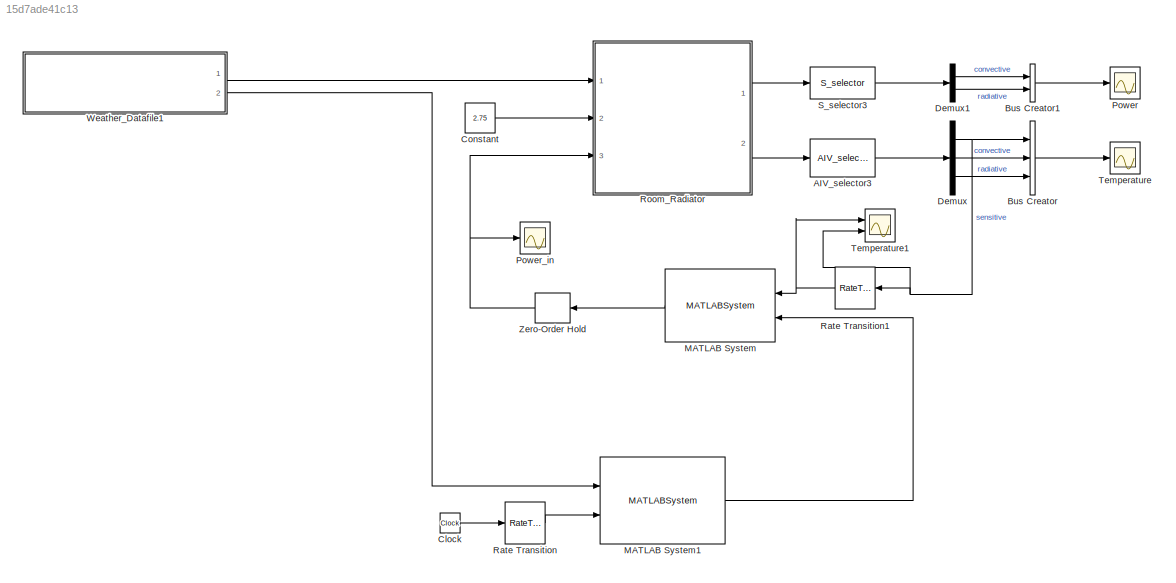
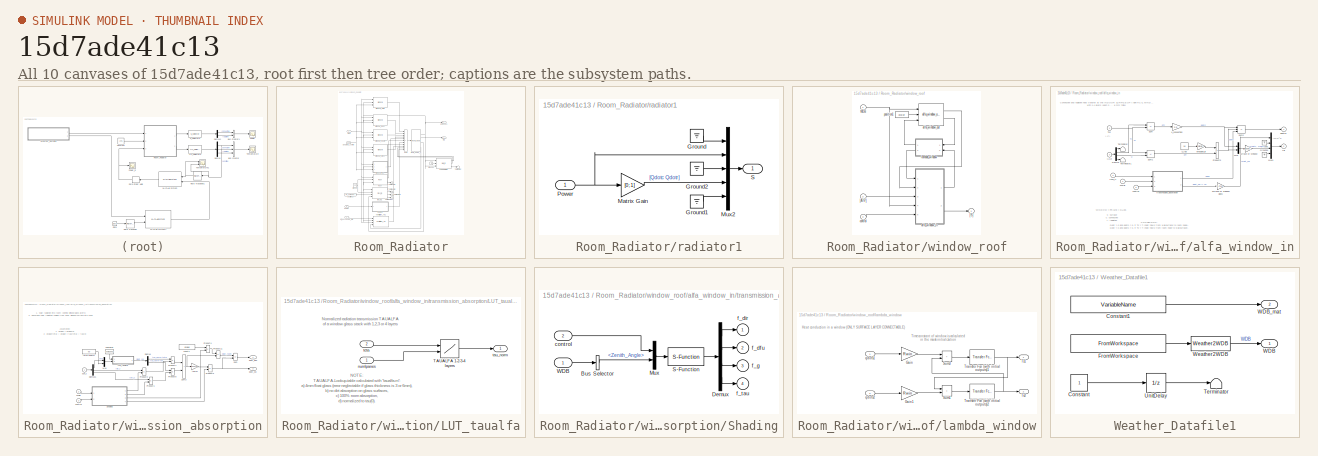
[diagram: thumbnail index - all 10 canvases of the model, root first then tree order]
MODEL slx_15d7ade41c13
KIND model
CONFIG AbsTol = auto
CONFIG EnableMultiTasking = off
CONFIG FixedStep = auto
CONFIG MaxStep = auto
CONFIG MinStep = auto
CONFIG RelTol = 1e-3
CONFIG SampleTimeConstraint = Unconstrained
CONFIG SolverName = FixedStepAuto
CONFIG StartTime = 0.0
CONFIG StopTime = 1.5 * 24 * 3600
WORKSPACE source: external: MAT-File  (data not in archive)
BLOCK [Reference] AIV_selector3  REF=carnot/Outputs/AIV_selector
  Ports = [1, 1]
  SourceBlock = carnot/Outputs/AIV_selector
  SourceProductName = Carnot
  SourceType = AIV DATA
BLOCK [BusCreator] Bus Creator
  DisplayOption = bar
  InheritFromInputs = on
  Inputs = 3
  Ports = [3, 1]
BLOCK [BusCreator] Bus Creator1
  DisplayOption = bar
  InheritFromInputs = on
  Inputs = 2
  Ports = [2, 1]
BLOCK [Clock] Clock
BLOCK [Constant] Constant
  Value = 2.75
BLOCK [Demux] Demux
  Outputs = 3
  Ports = [1, 3]
BLOCK [Demux] Demux1
  Outputs = 2
  Ports = [1, 2]
BLOCK [MATLABSystem] MATLAB System
  MaskDisplay = disp('gp_mpc_system');\nport_label('input',1,'x');\nport_label('input',2,'w');\nport_label('output',1,'u');
  MaskType = gp_mpc_system
  N = 10
  Pel = 6300
  Ports = [2, 1]
  SimulateUsing = Interpreted execution
  System = gp_mpc_system
  TimeStep = 300
BLOCK [MATLABSystem] MATLAB System1
  MaskDisplay = disp('weather_predictor');\nport_label('input',1,'wdb_mat');\nport_label('input',2,'timestamp');\nport_label('output',1,'w');
  MaskType = weather_predictor
  N = 10
  Ports = [2, 1]
  SimulateUsing = Interpreted execution
  System = weather_predictor
  TimeStep = 300
BLOCK [Scope] Power
  Floating = off
  NumInputPorts = 1
  Ports = [1]
  ScopeSpecificationString = Simulink.scopes.TimeScopeBlockCfg('CurrentConfiguration', extmgr.ConfigurationSet(extmgr.Configuration('Core','General UI',true),extmgr.Configuration('Core','Source UI',true),extmgr.Configuration('Sources','WiredSimulink',true,'DataLoggingSaveFormat','StructureWithTime','DataLoggingDecimation','1','DataLoggingDecimateData',true,'DataLoggingVariableName','ScopeData1'),extmgr.Configuration('Visuals'...<+1680ch>
BLOCK [Scope] Power_in
  Floating = off
  NumInputPorts = 1
  Ports = [1]
  ScopeSpecificationString = Simulink.scopes.TimeScopeBlockCfg('CurrentConfiguration', extmgr.ConfigurationSet(extmgr.Configuration('Core','General UI',true),extmgr.Configuration('Core','Source UI',true),extmgr.Configuration('Sources','WiredSimulink',true,'DataLoggingSaveFormat','StructureWithTime','DataLoggingDecimation','1','DataLoggingDecimateData',true,'DataLoggingVariableName','ScopeData3'),extmgr.Configuration('Visuals'...<+1789ch>
BLOCK [RateTransition] Rate Transition
  OutPortSampleTime = 300
BLOCK [RateTransition] Rate Transition1
  OutPortSampleTime = 300
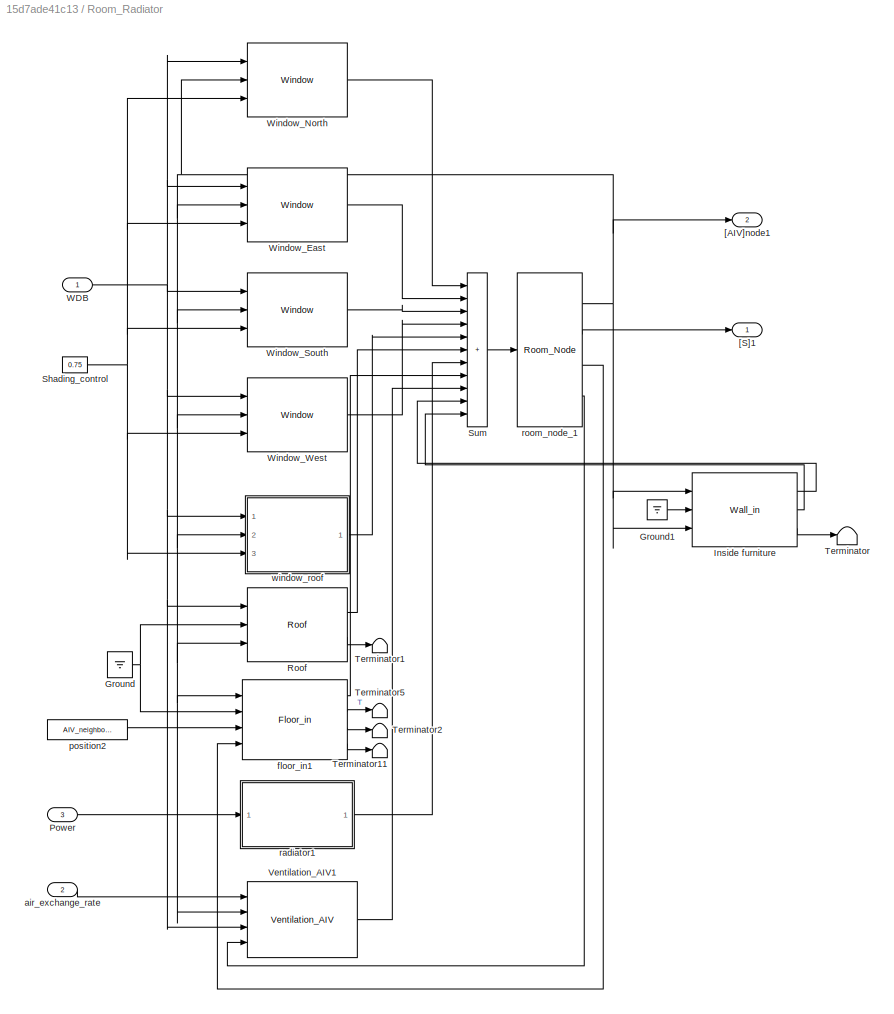
BLOCK [SubSystem] Room_Radiator
  AncestorBlock = carnot/Load/Houses/Room_Radiator
  Ports = [3, 2]
  RequestExecContextInheritance = off
BLOCK [Ground] Room_Radiator/Ground
BLOCK [Ground] Room_Radiator/Ground1
BLOCK [Reference] Room_Radiator/Inside furniture  REF=carnot/Basic/Thermal_Models/Wall_in
  Ports = [3, 3]
  SourceBlock = carnot/Basic/Thermal_Models/Wall_in
  SourceProductName = Carnot
  SourceType = inner wall
BLOCK [Inport] Room_Radiator/Power
  Port = 3
BLOCK [Reference] Room_Radiator/Roof  REF=carnot/Basic/Thermal_Models/Roof
  Ports = [3, 2]
  SourceBlock = carnot/Basic/Thermal_Models/Roof
  SourceProductName = Carnot
  SourceType = outer roof
BLOCK [Constant] Room_Radiator/Shading_control
  Value = 0.75
BLOCK [Sum] Room_Radiator/Sum
  IconShape = rectangular
  InputSameDT = on
  Inputs = 11
  OutDataTypeStr = Inherit: Same as first input
  Ports = [11, 1]
  SaturateOnIntegerOverflow = on
BLOCK [Terminator] Room_Radiator/Terminator
BLOCK [Terminator] Room_Radiator/Terminator1
BLOCK [Terminator] Room_Radiator/Terminator11
BLOCK [Terminator] Room_Radiator/Terminator2
BLOCK [Terminator] Room_Radiator/Terminator5
BLOCK [Reference] Room_Radiator/Ventilation_AIV1  REF=carnot/Source/Ventilation/Ventilation_AIV
  Ports = [4, 1]
  SourceBlock = carnot/Source/Ventilation/Ventilation_AIV
  SourceProductName = Carnot
  SourceType = ACTIVE COMPONENT
BLOCK [Inport] Room_Radiator/WDB
BLOCK [Reference] Room_Radiator/Window_East  REF=carnot/Basic/Thermal_Models/Window
  Ports = [3, 1]
  SourceBlock = carnot/Basic/Thermal_Models/Window
  SourceProductName = Carnot
  SourceType = window
BLOCK [Reference] Room_Radiator/Window_North  REF=carnot/Basic/Thermal_Models/Window
  Ports = [3, 1]
  SourceBlock = carnot/Basic/Thermal_Models/Window
  SourceProductName = Carnot
  SourceType = window
BLOCK [Reference] Room_Radiator/Window_South  REF=carnot/Basic/Thermal_Models/Window
  Ports = [3, 1]
  SourceBlock = carnot/Basic/Thermal_Models/Window
  SourceProductName = Carnot
  SourceType = window
BLOCK [Reference] Room_Radiator/Window_West  REF=carnot/Basic/Thermal_Models/Window
  Ports = [3, 1]
  SourceBlock = carnot/Basic/Thermal_Models/Window
  SourceProductName = Carnot
  SourceType = window
BLOCK [Outport] Room_Radiator/[AIV]node1
  Port = 2
  VectorParamsAs1DForOutWhenUnconnected = off
BLOCK [Outport] Room_Radiator/[S]1
  VectorParamsAs1DForOutWhenUnconnected = off
BLOCK [Inport] Room_Radiator/air_exchange_rate
  Port = 2
BLOCK [Reference] Room_Radiator/floor_in1  REF=carnot/Basic/Thermal_Models/Floor_in
  Ports = [4, 4]
  SourceBlock = carnot/Basic/Thermal_Models/Floor_in
  SourceProductName = Carnot
  SourceType = inner floor
BLOCK [Constant] Room_Radiator/position2
  Value = AIV_neighbour
BLOCK [SubSystem] Room_Radiator/radiator1
  AncestorBlock = carnot/Source/Heat_Exchanger/Radiator_AIV
  Ports = [1, 1]
  RequestExecContextInheritance = off
BLOCK [Ground] Room_Radiator/radiator1/Ground
BLOCK [Ground] Room_Radiator/radiator1/Ground1
BLOCK [Ground] Room_Radiator/radiator1/Ground2
BLOCK [Gain] Room_Radiator/radiator1/Matrix Gain
  Gain = [0; 1]
  Multiplication = Matrix(K*u)
  OutDataTypeStr = Inherit: Same as input
  ParamDataTypeStr = Inherit: Same as input
  SaturateOnIntegerOverflow = on
BLOCK [Mux] Room_Radiator/radiator1/Mux2
  DisplayOption = bar
  Inputs = [4 1 1 2 5]
  Ports = [5, 1]
BLOCK [Inport] Room_Radiator/radiator1/Power
BLOCK [Outport] Room_Radiator/radiator1/S
  VectorParamsAs1DForOutWhenUnconnected = off
BLOCK [Reference] Room_Radiator/room_node_1  REF=carnot/Basic/Thermal_Models/Room_Node
  Ports = [1, 4]
  SourceBlock = carnot/Basic/Thermal_Models/Room_Node
  SourceProductName = Carnot
  SourceType = NODE
BLOCK [SubSystem] Room_Radiator/window_roof
  AncestorBlock = carnot/Basic/Thermal_Models/Window
  Ports = [3, 1]
  RequestExecContextInheritance = off
BLOCK [Inport] Room_Radiator/window_roof/WDB
BLOCK [Inport] Room_Radiator/window_roof/[AIV]
  Port = 2
BLOCK [Outport] Room_Radiator/window_roof/[S]
  VectorParamsAs1DForOutWhenUnconnected = off
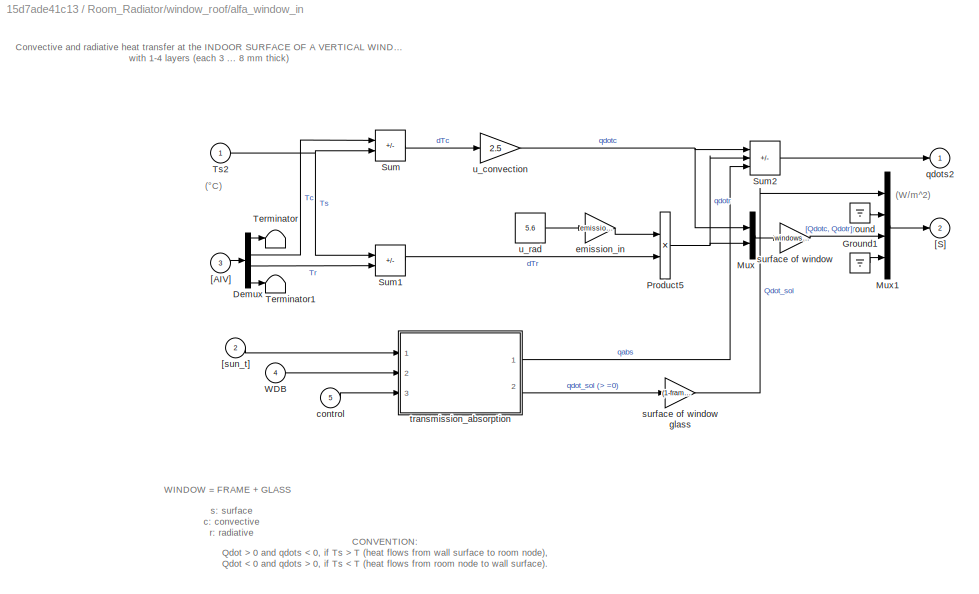
BLOCK [SubSystem] Room_Radiator/window_roof/alfa_window_in
  Ports = [5, 2]
  RequestExecContextInheritance = off
BLOCK [Demux] Room_Radiator/window_roof/alfa_window_in/Demux
  DisplayOption = none
  Outputs = [1 1 1 6]
  Ports = [1, 4]
BLOCK [Ground] Room_Radiator/window_roof/alfa_window_in/Ground
BLOCK [Ground] Room_Radiator/window_roof/alfa_window_in/Ground1
BLOCK [Mux] Room_Radiator/window_roof/alfa_window_in/Mux
  Inputs = 2
  Ports = [2, 1]
BLOCK [Mux] Room_Radiator/window_roof/alfa_window_in/Mux1
  Inputs = [1 5 2 5]
  Ports = [4, 1]
BLOCK [Product] Room_Radiator/window_roof/alfa_window_in/Product5
  InputSameDT = on
  OutDataTypeStr = Inherit: Same as first input
  Ports = [2, 1]
  RndMeth = Zero
  SaturateOnIntegerOverflow = on
BLOCK [Sum] Room_Radiator/window_roof/alfa_window_in/Sum
  IconShape = rectangular
  InputSameDT = on
  Inputs = -+
  OutDataTypeStr = Inherit: Same as first input
  Ports = [2, 1]
  SaturateOnIntegerOverflow = on
BLOCK [Sum] Room_Radiator/window_roof/alfa_window_in/Sum1
  IconShape = rectangular
  InputSameDT = on
  Inputs = +-
  OutDataTypeStr = Inherit: Same as first input
  Ports = [2, 1]
  SaturateOnIntegerOverflow = on
BLOCK [Sum] Room_Radiator/window_roof/alfa_window_in/Sum2
  IconShape = rectangular
  InputSameDT = on
  Inputs = --+
  OutDataTypeStr = Inherit: Same as first input
  Ports = [3, 1]
  SaturateOnIntegerOverflow = on
BLOCK [Terminator] Room_Radiator/window_roof/alfa_window_in/Terminator
BLOCK [Terminator] Room_Radiator/window_roof/alfa_window_in/Terminator1
BLOCK [Inport] Room_Radiator/window_roof/alfa_window_in/Ts2
BLOCK [Inport] Room_Radiator/window_roof/alfa_window_in/WDB
  Port = 4
BLOCK [Inport] Room_Radiator/window_roof/alfa_window_in/[AIV]
  Port = 3
BLOCK [Outport] Room_Radiator/window_roof/alfa_window_in/[S]
  Port = 2
  VectorParamsAs1DForOutWhenUnconnected = off
BLOCK [Inport] Room_Radiator/window_roof/alfa_window_in/[sun_t]
  Port = 2
BLOCK [Inport] Room_Radiator/window_roof/alfa_window_in/control
  Port = 5
BLOCK [Gain] Room_Radiator/window_roof/alfa_window_in/emission_in
  Gain = emission_in
  OutDataTypeStr = Inherit: Same as input
  ParamDataTypeStr = Inherit: Same as input
  SaturateOnIntegerOverflow = on
BLOCK [Outport] Room_Radiator/window_roof/alfa_window_in/qdots2
  VectorParamsAs1DForOutWhenUnconnected = off
BLOCK [Gain] Room_Radiator/window_roof/alfa_window_in/surface of window
  Gain = windowsurface
  OutDataTypeStr = Inherit: Same as input
  ParamDataTypeStr = Inherit: Same as input
  SaturateOnIntegerOverflow = on
BLOCK [Gain] Room_Radiator/window_roof/alfa_window_in/surface of window glass
  Gain = (1-frame)*windowsurface
  OutDataTypeStr = Inherit: Same as input
  ParamDataTypeStr = Inherit: Same as input
  SaturateOnIntegerOverflow = on
BLOCK [SubSystem] Room_Radiator/window_roof/alfa_window_in/transmission_absorption
  Ports = [3, 2]
  RequestExecContextInheritance = off
BLOCK [Demux] Room_Radiator/window_roof/alfa_window_in/transmission_absorption/Demux
  DisplayOption = none
  NameLocation = top
  Outputs = 2
  Ports = [1, 2]
BLOCK [Demux] Room_Radiator/window_roof/alfa_window_in/transmission_absorption/Demux1
  DisplayOption = none
  Outputs = 3
  Ports = [1, 3]
BLOCK [SubSystem] Room_Radiator/window_roof/alfa_window_in/transmission_absorption/LUT_taualfa
  Ports = [2, 1]
  RequestExecContextInheritance = off
BLOCK [Lookup2D] Room_Radiator/window_roof/alfa_window_in/transmission_absorption/LUT_taualfa/TAUALFA 1-2-3-4 layers
  ColumnIndex = [1:4]
  RowIndex = [0:10:90]
  Table = [1  1  1  1;.99955 .99912  .9987 .99827;.99787  .9961 .99449 .99298;.99364 .98941 .98618 .98366;.98364 .97519 .97041 .96824;.9601 .94337 .93638 .93624;.90423 .86634 .84734 .84064;.77129 .67843 .61507 .56891;.47436  .3235 .22952 .16682;0  0  0  0]
BLOCK [Inport] Room_Radiator/window_roof/alfa_window_in/transmission_absorption/LUT_taualfa/numlpanes
BLOCK [Outport] Room_Radiator/window_roof/alfa_window_in/transmission_absorption/LUT_taualfa/tau_norm
  VectorParamsAs1DForOutWhenUnconnected = off
BLOCK [Inport] Room_Radiator/window_roof/alfa_window_in/transmission_absorption/LUT_taualfa/teta
  Port = 2
BLOCK [Mux] Room_Radiator/window_roof/alfa_window_in/transmission_absorption/Mux
  Inputs = 2
  Ports = [2, 1]
BLOCK [Product] Room_Radiator/window_roof/alfa_window_in/transmission_absorption/Product1
  InputSameDT = on
  OutDataTypeStr = Inherit: Same as first input
  Ports = [2, 1]
  RndMeth = Zero
  SaturateOnIntegerOverflow = on
BLOCK [Product] Room_Radiator/window_roof/alfa_window_in/transmission_absorption/Product11
  InputSameDT = on
  Inputs = **
  OutDataTypeStr = Inherit: Same as first input
  Ports = [2, 1]
  RndMeth = Zero
  SaturateOnIntegerOverflow = on
BLOCK [Product] Room_Radiator/window_roof/alfa_window_in/transmission_absorption/Product2
  InputSameDT = on
  OutDataTypeStr = Inherit: Same as first input
  Ports = [2, 1]
  RndMeth = Zero
  SaturateOnIntegerOverflow = on
BLOCK [Product] Room_Radiator/window_roof/alfa_window_in/transmission_absorption/Product3
  InputSameDT = on
  OutDataTypeStr = Inherit: Same as first input
  Ports = [2, 1]
  RndMeth = Zero
  SaturateOnIntegerOverflow = on
BLOCK [Product] Room_Radiator/window_roof/alfa_window_in/transmission_absorption/Product4
  InputSameDT = on
  OutDataTypeStr = Inherit: Same as first input
  Ports = [2, 1]
  RndMeth = Zero
  SaturateOnIntegerOverflow = on
BLOCK [Product] Room_Radiator/window_roof/alfa_window_in/transmission_absorption/Product7
  InputSameDT = on
  OutDataTypeStr = Inherit: Same as first input
  Ports = [2, 1]
  RndMeth = Zero
  SaturateOnIntegerOverflow = on
BLOCK [Product] Room_Radiator/window_roof/alfa_window_in/transmission_absorption/Product8
  InputSameDT = on
  OutDataTypeStr = Inherit: Same as first input
  Ports = [2, 1]
  RndMeth = Zero
  SaturateOnIntegerOverflow = on
BLOCK [SubSystem] Room_Radiator/window_roof/alfa_window_in/transmission_absorption/Shading
  Ports = [2, 4]
  RequestExecContextInheritance = off
BLOCK [BusSelector] Room_Radiator/window_roof/alfa_window_in/transmission_absorption/Shading/Bus Selector
  OutputSignals = Zenith_Angle
  Ports = [1, 1]
BLOCK [Demux] Room_Radiator/window_roof/alfa_window_in/transmission_absorption/Shading/Demux
  Ports = [1, 4]
BLOCK [Mux] Room_Radiator/window_roof/alfa_window_in/transmission_absorption/Shading/Mux
  DisplayOption = bar
  Inputs = 2
  Ports = [2, 1]
BLOCK [S-Function] Room_Radiator/window_roof/alfa_window_in/transmission_absorption/Shading/S-Function
  EnableBusSupport = off
  FunctionName = venetian
  Parameters = bli_a, bli_b, bli_c, bli_d, bli_alpha, bli_refl, shad_type, type_glazing, tau_shad
  Ports = [1, 1]
  SFcnIsStateOwnerBlock = off
  SFunctionDeploymentMode = off
BLOCK [Inport] Room_Radiator/window_roof/alfa_window_in/transmission_absorption/Shading/WDB
BLOCK [Inport] Room_Radiator/window_roof/alfa_window_in/transmission_absorption/Shading/control
  Port = 2
BLOCK [Outport] Room_Radiator/window_roof/alfa_window_in/transmission_absorption/Shading/f_dfu
  Port = 2
  VectorParamsAs1DForOutWhenUnconnected = off
BLOCK [Outport] Room_Radiator/window_roof/alfa_window_in/transmission_absorption/Shading/f_dir
  VectorParamsAs1DForOutWhenUnconnected = off
BLOCK [Outport] Room_Radiator/window_roof/alfa_window_in/transmission_absorption/Shading/f_g
  Port = 3
  VectorParamsAs1DForOutWhenUnconnected = off
BLOCK [Outport] Room_Radiator/window_roof/alfa_window_in/transmission_absorption/Shading/f_tau
  Port = 4
  VectorParamsAs1DForOutWhenUnconnected = off
BLOCK [Sum] Room_Radiator/window_roof/alfa_window_in/transmission_absorption/Sum
  IconShape = rectangular
  InputSameDT = on
  Inputs = +-
  OutDataTypeStr = Inherit: Same as first input
  Ports = [2, 1]
  SaturateOnIntegerOverflow = on
BLOCK [Sum] Room_Radiator/window_roof/alfa_window_in/transmission_absorption/Sum3
  IconShape = rectangular
  InputSameDT = on
  OutDataTypeStr = Inherit: Same as first input
  Ports = [2, 1]
  SaturateOnIntegerOverflow = on
BLOCK [Inport] Room_Radiator/window_roof/alfa_window_in/transmission_absorption/WDB
  Port = 2
BLOCK [Constant] Room_Radiator/window_roof/alfa_window_in/transmission_absorption/const1
  NameLocation = top
  Value = gvalue
BLOCK [Inport] Room_Radiator/window_roof/alfa_window_in/transmission_absorption/control
  Port = 3
BLOCK [Constant] Room_Radiator/window_roof/alfa_window_in/transmission_absorption/numlayer
  NameLocation = left
  Value = numpanes
BLOCK [Outport] Room_Radiator/window_roof/alfa_window_in/transmission_absorption/qdot_abs
  VectorParamsAs1DForOutWhenUnconnected = off
BLOCK [Outport] Room_Radiator/window_roof/alfa_window_in/transmission_absorption/qdot_sol
  Port = 2
  VectorParamsAs1DForOutWhenUnconnected = off
BLOCK [Inport] Room_Radiator/window_roof/alfa_window_in/transmission_absorption/sun_t
  NameLocation = top
BLOCK [Gain] Room_Radiator/window_roof/alfa_window_in/transmission_absorption/tau(0)
  Gain = tauzero
  OutDataTypeStr = Inherit: Same as input
  ParamDataTypeStr = Inherit: Same as input
  SaturateOnIntegerOverflow = on
BLOCK [Constant] Room_Radiator/window_roof/alfa_window_in/transmission_absorption/teta(taudfu)
  Value = 60
BLOCK [Gain] Room_Radiator/window_roof/alfa_window_in/u_convection
  Gain = 2.5
  OutDataTypeStr = Inherit: Same as input
  ParamDataTypeStr = Inherit: Same as input
  SaturateOnIntegerOverflow = on
BLOCK [Constant] Room_Radiator/window_roof/alfa_window_in/u_rad
  Value = 5.6
BLOCK [Reference] Room_Radiator/window_roof/alfa_window_out  REF=carnot/Basic/Heat_Transfer/alfa_window_out
  Ports = [3, 2]
  SourceBlock = carnot/Basic/Heat_Transfer/alfa_window_out
  SourceProductName = Carnot
  SourceType = ALFA
BLOCK [Inport] Room_Radiator/window_roof/control
  Port = 3
BLOCK [SubSystem] Room_Radiator/window_roof/lambda_window
  Ports = [2, 2]
  RequestExecContextInheritance = off
BLOCK [Gain] Room_Radiator/window_roof/lambda_window/Gain
  Gain = Rwin
BLOCK [Gain] Room_Radiator/window_roof/lambda_window/Gain1
  Gain = Rwin
BLOCK [Sum] Room_Radiator/window_roof/lambda_window/Sum1
  IconShape = rectangular
  InputSameDT = on
  NameLocation = top
  OutDataTypeStr = Inherit: Same as first input
  Ports = [2, 1]
  SaturateOnIntegerOverflow = on
BLOCK [Sum] Room_Radiator/window_roof/lambda_window/Sum3
  IconShape = rectangular
  InputSameDT = on
  NameLocation = top
  OutDataTypeStr = Inherit: Same as first input
  Ports = [2, 1]
  SaturateOnIntegerOverflow = on
BLOCK [Reference] Room_Radiator/window_roof/lambda_window/Transfer Fcn (with initial outputs)1  REF=simulink_extras/Additional
Linear/Transfer Fcn
(with initial outputs)
  Ports = [1, 1]
  SourceBlock = simulink_extras/Additional\nLinear/Transfer Fcn\n(with initial outputs)
  SourceProductBaseCode = SL
  SourceType = Transfer Function with Initial Outputs
BLOCK [Reference] Room_Radiator/window_roof/lambda_window/Transfer Fcn (with initial outputs)2  REF=simulink_extras/Additional
Linear/Transfer Fcn
(with initial outputs)
  Ports = [1, 1]
  SourceBlock = simulink_extras/Additional\nLinear/Transfer Fcn\n(with initial outputs)
  SourceProductBaseCode = SL
  SourceType = Transfer Function with Initial Outputs
BLOCK [Outport] Room_Radiator/window_roof/lambda_window/Ts1
  VectorParamsAs1DForOutWhenUnconnected = off
BLOCK [Outport] Room_Radiator/window_roof/lambda_window/Ts2
  Port = 2
  VectorParamsAs1DForOutWhenUnconnected = off
BLOCK [Inport] Room_Radiator/window_roof/lambda_window/qdots1
BLOCK [Inport] Room_Radiator/window_roof/lambda_window/qdots2
  Port = 2
BLOCK [Constant] Room_Radiator/window_roof/position1
  Value = gvalue
BLOCK [Reference] S_selector3  REF=carnot/Outputs/S_selector
  Ports = [1, 1]
  SourceBlock = carnot/Outputs/S_selector
  SourceProductName = Carnot
  SourceType = S_Selector
BLOCK [Scope] Temperature
  Floating = off
  NumInputPorts = 1
  Ports = [1]
  ScopeSpecificationString = Simulink.scopes.TimeScopeBlockCfg('CurrentConfiguration', extmgr.ConfigurationSet(extmgr.Configuration('Core','General UI',true),extmgr.Configuration('Core','Source UI',true),extmgr.Configuration('Sources','WiredSimulink',true,'DataLoggingSaveFormat','StructureWithTime','DataLoggingDecimation','1','DataLoggingDecimateData',true),extmgr.Configuration('Visuals','Time Domain',true,'SerializedDisplays...<+1779ch>
BLOCK [Scope] Temperature1
  Floating = off
  NumInputPorts = 2
  Ports = [2]
  ScopeSpecificationString = Simulink.scopes.TimeScopeBlockCfg('CurrentConfiguration', extmgr.ConfigurationSet(extmgr.Configuration('Core','General UI',true),extmgr.Configuration('Core','Source UI',true),extmgr.Configuration('Sources','WiredSimulink',true,'DataLoggingSaveFormat','StructureWithTime','DataLoggingDecimation','1','DataLoggingDecimateData',true,'DataLoggingVariableName','ScopeData1'),extmgr.Configuration('Visuals'...<+1788ch>
BLOCK [SubSystem] Weather_Datafile1
  AncestorBlock = carnot/Weather/Weather_Datafile
  Ports = [0, 2]
  RequestExecContextInheritance = off
BLOCK [Constant] Weather_Datafile1/Constant
BLOCK [Constant] Weather_Datafile1/Constant1
  SampleTime = -1
  Value = VariableName
BLOCK [FromWorkspace] Weather_Datafile1/FromWorkspace
  OutputAfterFinalValue = Holding final value
  SampleTime = -1
  VariableName = VariableName
  ZeroCross = off
BLOCK [Terminator] Weather_Datafile1/Terminator
BLOCK [UnitDelay] Weather_Datafile1/UnitDelay
  HasFrameUpgradeWarning = on
  SampleTime = SampleTime
BLOCK [Outport] Weather_Datafile1/WDB
  VectorParamsAs1DForOutWhenUnconnected = off
BLOCK [Outport] Weather_Datafile1/WDB_mat
  Port = 2
BLOCK [Reference] Weather_Datafile1/Weather2WDB  REF=carnot/Toolbox/Weather2WDB
  Ports = [1, 1]
  SourceBlock = carnot/Toolbox/Weather2WDB
  SourceProductName = Carnot
  SourceType = weather 2 WDB
BLOCK [ZeroOrderHold] Zero-Order Hold
  SampleTime = 300
ANNOTATION Room_Radiator/window_roof/alfa_window_in: (W/m^2)
ANNOTATION Room_Radiator/window_roof/alfa_window_in: (°C)
ANNOTATION Room_Radiator/window_roof/alfa_window_in: CONVENTION: Qdot > 0 and qdots T (heat flows from wall surface to room node), Qdot 0, if Ts < T (heat flows from room node to wall surface).
ANNOTATION Room_Radiator/window_roof/alfa_window_in: Convective and radiative heat transfer at the INDOOR SURFACE OF A VERTICAL WINDOW with 1-4 layers (each 3 ... 8 mm thick)
ANNOTATION Room_Radiator/window_roof/alfa_window_in: WINDOW = FRAME + GLASS
ANNOTATION Room_Radiator/window_roof/alfa_window_in: s: surface c: convective r: radiative
ANNOTATION Room_Radiator/window_roof/alfa_window_in/transmission_absorption: 1. solar radiation into room (behind window glass layers) 2. absorbed solar radiation flowing from inner window surface into zone
ANNOTATION Room_Radiator/window_roof/alfa_window_in/transmission_absorption: Assumption: 1. gvalue = gvalue(0) 2. gvalue(teta) / gvalue = tau(teta) / tau(0)
ANNOTATION Room_Radiator/window_roof/alfa_window_in/transmission_absorption/LUT_taualfa: NOTE: TAUALFA-Lookup-table calculated with "taualfa.m": a) 4mm float glass (error neglectable if glass thickness is 3 or 6mm), b) no dirt absorption on glass surfaces, c) 100% room absorption, d) normalized to tau(0). From: Duffie / Beckman: Solar Engineering of Thermal Processes, 1991
ANNOTATION Room_Radiator/window_roof/alfa_window_in/transmission_absorption/LUT_taualfa: Normalized radiation transmission TAUALFA of a window glass stack with 1,2,3 or 4 layers
ANNOTATION Room_Radiator/window_roof/lambda_window: Heat conduction in a window (ONLY SURFACE LAYER CONNECTABLE)
ANNOTATION Room_Radiator/window_roof/lambda_window: Timeconstant of window is calculated in the mask initialization
LINE AIV_selector3:1 -> Demux:1
LINE Bus Creator1:1 -> Power:1
LINE Bus Creator:1 -> Temperature:1
LINE Clock:1 -> Rate Transition:1
LINE Constant:1 -> Room_Radiator:2
LINE Demux1:1 -> Bus Creator1:1
LINE Demux1:2 -> Bus Creator1:2
NET Demux:1 -> Bus Creator:1, Rate Transition1:1, Temperature1:2
LINE Demux:2 -> Bus Creator:2
LINE Demux:3 -> Bus Creator:3
LINE MATLAB System1:1 -> MATLAB System:2
LINE MATLAB System:1 -> Zero-Order Hold:1
NET Rate Transition1:1 -> MATLAB System:1, Temperature1:1
LINE Rate Transition:1 -> MATLAB System1:2
LINE Room_Radiator:1 -> S_selector3:1
LINE Room_Radiator:2 -> AIV_selector3:1
LINE S_selector3:1 -> Demux1:1
LINE Weather_Datafile1:1 -> Room_Radiator:1
LINE Weather_Datafile1:2 -> MATLAB System1:1
NET Zero-Order Hold:1 -> Power_in:1, Room_Radiator:3
note: NET lines group one-source signal fan-out (src -> all destinations, sorted); 1:1 wires keep LINE
